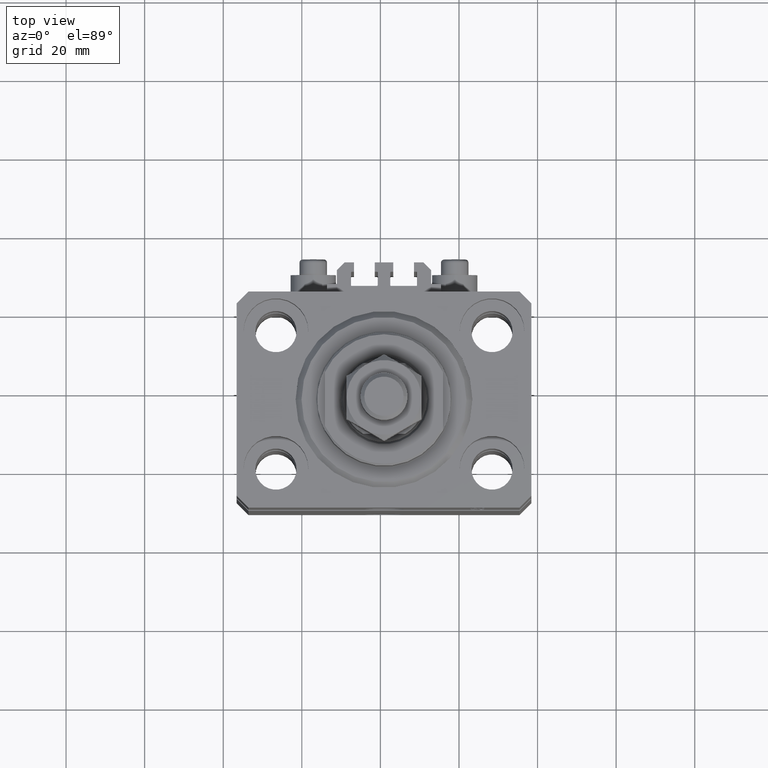
[diagram: clean part render]
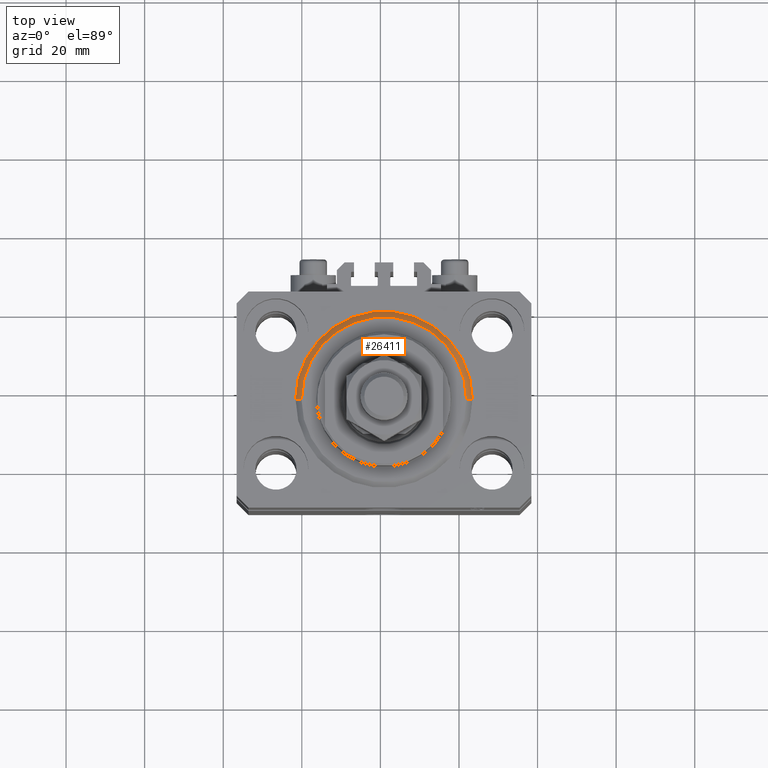
[diagram: same view with one face highlighted and labeled with its STEP entity id]
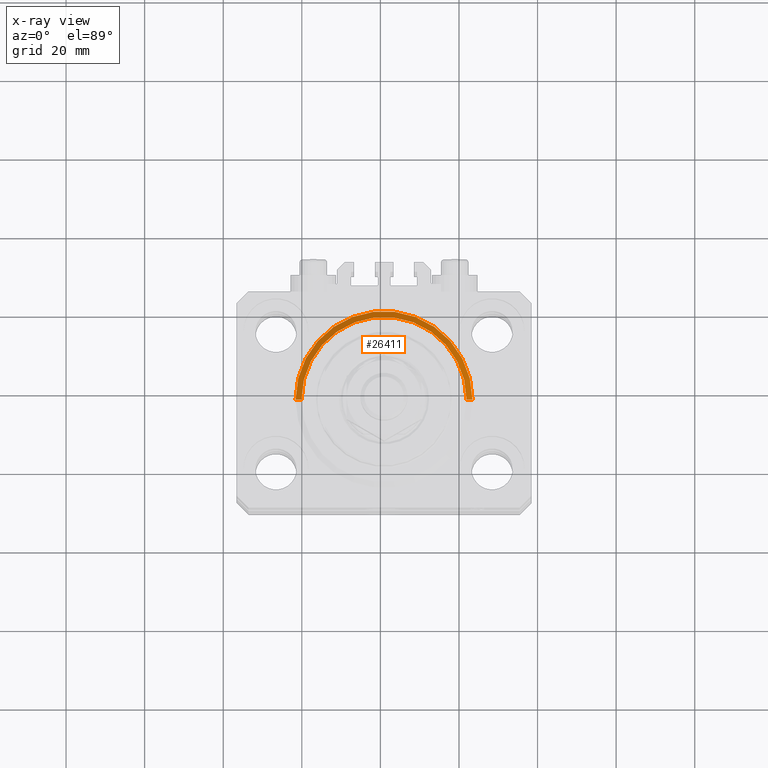
[diagram: x-ray of the same camera — body ghosted, the highlighted face saturated]
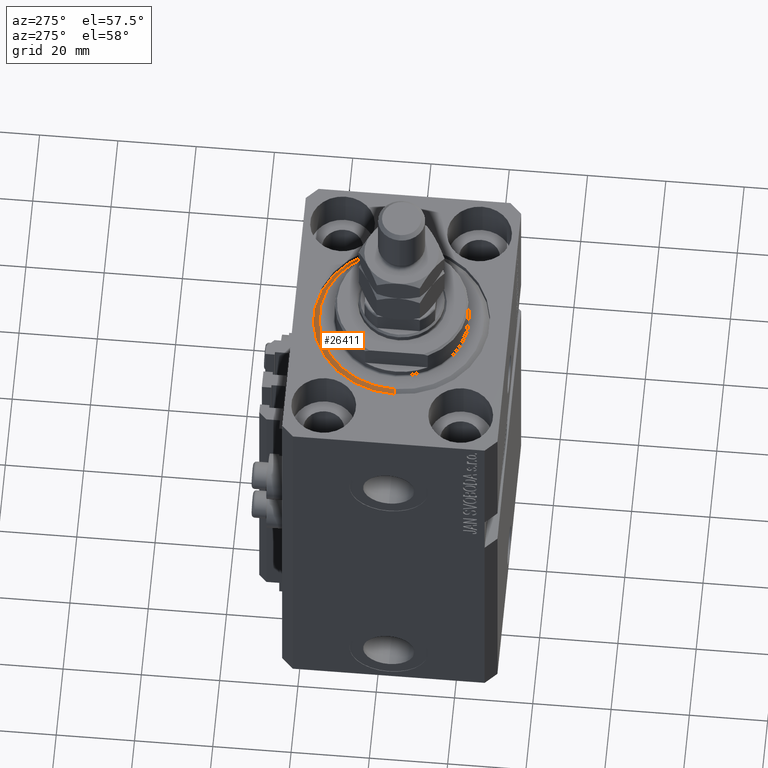
[diagram: same view with one face highlighted and labeled with its STEP entity id]
A machine part, top view. The second image highlights one B-rep face of the part: STEP entity #26411.
The next image is the same camera in x-ray: the body ghosted, the highlighted face saturated — about 0% of this face is hidden behind the body in this view.
A second angle (auxiliary view) of the same face is appended — the face is thin or edge-on in the first view.
In plain terms, the highlighted conical surface has half-angle 45 deg.
Its self-contained STEP definition (entity closure, byte-faithful):
#4588 = VECTOR ( 'NONE', #38767, 1000.000000000000114 ) ;
#5333 = CARTESIAN_POINT ( 'NONE',  ( -22.50000000000000355, 0.000000000000000000, 1.500000000000039524 ) ) ;
#6245 = DIRECTION ( 'NONE',  ( 0.7071067811865500152, 0.000000000000000000, 0.7071067811865451302 ) ) ;
#6492 = CARTESIAN_POINT ( 'NONE',  ( 22.50000000000000355, 0.000000000000000000, 1.500000000000039524 ) ) ;
#7451 = DIRECTION ( 'NONE',  ( 1.000000000000000000, 0.000000000000000000, 0.000000000000000000 ) ) ;
#8662 = DIRECTION ( 'NONE',  ( -0.000000000000000000, -0.000000000000000000, 1.000000000000000000 ) ) ;
#8765 = VERTEX_POINT ( 'NONE', #21806 ) ;
#9858 = ORIENTED_EDGE ( 'NONE', *, *, #35587, .T. ) ;
#11871 = DIRECTION ( 'NONE',  ( 1.000000000000000000, 0.000000000000000000, 0.000000000000000000 ) ) ;
#12097 = FACE_OUTER_BOUND ( 'NONE', #13798, .T. ) ;
#13798 = EDGE_LOOP ( 'NONE', ( #46102, #9858, #38674, #42861 ) ) ;
#15058 = CARTESIAN_POINT ( 'NONE',  ( 0.000000000000000000, 0.000000000000000000, 0.000000000000000000 ) ) ;
#16477 = DIRECTION ( 'NONE',  ( 1.000000000000000000, 0.000000000000000000, 0.000000000000000000 ) ) ;
#18246 = CIRCLE ( 'NONE', #21347, 22.50000000000000355 ) ;
#19201 = DIRECTION ( 'NONE',  ( -0.000000000000000000, -0.000000000000000000, -1.000000000000000000 ) ) ;
#21035 = CARTESIAN_POINT ( 'NONE',  ( 22.50000000000000355, 2.755455298081544383E-15, 1.500000000000039524 ) ) ;
#21347 = AXIS2_PLACEMENT_3D ( 'NONE', #44645, #47834, #7451 ) ;
#21806 = CARTESIAN_POINT ( 'NONE',  ( 20.99999999999995381, 0.000000000000000000, 0.000000000000000000 ) ) ;
#23860 = LINE ( 'NONE', #46609, #4588 ) ;
#26411 = ADVANCED_FACE ( 'NONE', ( #12097 ), #33166, .T. ) ;
#27554 = CARTESIAN_POINT ( 'NONE',  ( -20.99999999999995381, 2.663606788145490261E-15, 0.000000000000000000 ) ) ;
#30400 = AXIS2_PLACEMENT_3D ( 'NONE', #15058, #19201, #11871 ) ;
#32195 = EDGE_CURVE ( 'NONE', #8765, #41905, #39493, .T. ) ;
#33166 = CONICAL_SURFACE ( 'NONE', #40973, 22.50000000000000355, 0.7853981633974517207 ) ;
#34334 = VERTEX_POINT ( 'NONE', #27554 ) ;
#35587 = EDGE_CURVE ( 'NONE', #34334, #40326, #23860, .T. ) ;
#37514 = EDGE_CURVE ( 'NONE', #34334, #8765, #47587, .T. ) ;
#38674 = ORIENTED_EDGE ( 'NONE', *, *, #40032, .F. ) ;
#38767 = DIRECTION ( 'NONE',  ( -0.7071067811865500152, 8.659560562354962440E-17, 0.7071067811865451302 ) ) ;
#39493 = LINE ( 'NONE', #6492, #41948 ) ;
#40032 = EDGE_CURVE ( 'NONE', #41905, #40326, #18246, .T. ) ;
#40326 = VERTEX_POINT ( 'NONE', #5333 ) ;
#40973 = AXIS2_PLACEMENT_3D ( 'NONE', #42173, #8662, #16477 ) ;
#41905 = VERTEX_POINT ( 'NONE', #21035 ) ;
#41948 = VECTOR ( 'NONE', #6245, 1000.000000000000114 ) ;
#42173 = CARTESIAN_POINT ( 'NONE',  ( 0.000000000000000000, 0.000000000000000000, 1.500000000000039524 ) ) ;
#42861 = ORIENTED_EDGE ( 'NONE', *, *, #32195, .F. ) ;
#44645 = CARTESIAN_POINT ( 'NONE',  ( 0.000000000000000000, 0.000000000000000000, 1.500000000000039524 ) ) ;
#46102 = ORIENTED_EDGE ( 'NONE', *, *, #37514, .F. ) ;
#46609 = CARTESIAN_POINT ( 'NONE',  ( -22.50000000000000355, 2.755455298081545172E-15, 1.500000000000039524 ) ) ;
#47587 = CIRCLE ( 'NONE', #30400, 20.99999999999995381 ) ;
#47834 = DIRECTION ( 'NONE',  ( -0.000000000000000000, -0.000000000000000000, 1.000000000000000000 ) ) ;